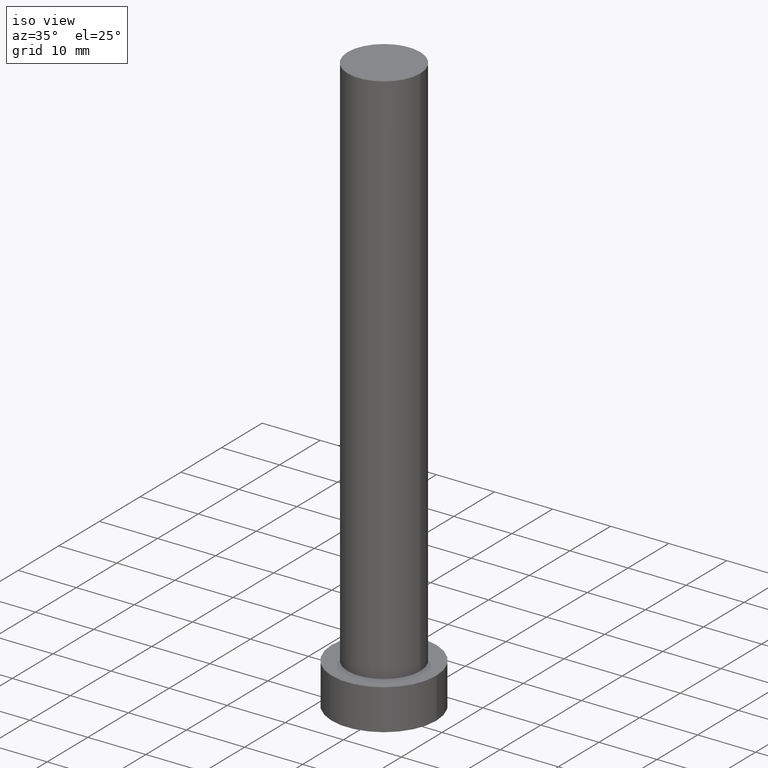
[diagram: clean part render]
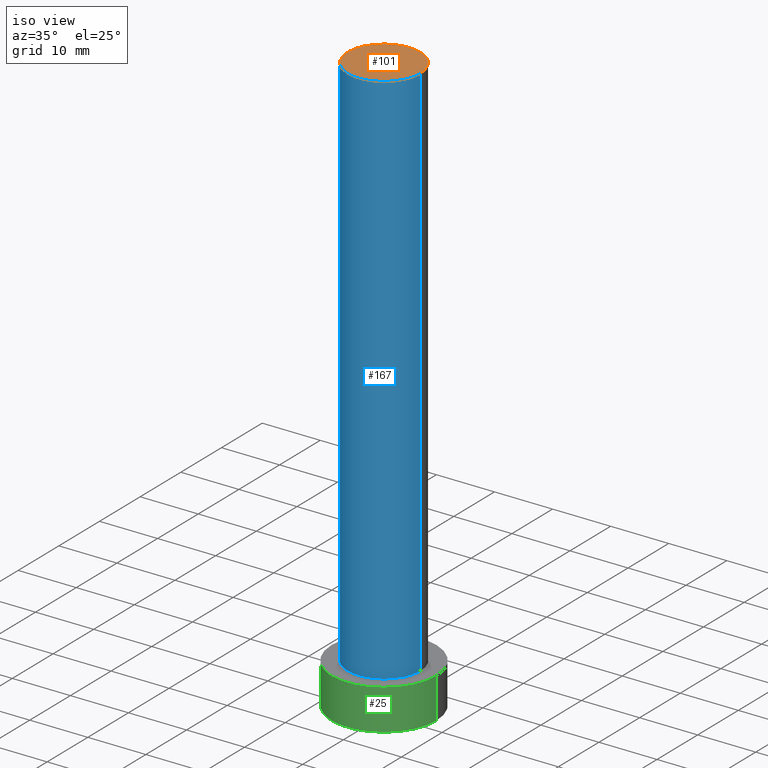
[diagram: same view with three faces highlighted in distinct colors, each labeled with its STEP entity id]
A machine part, iso view with three faces highlighted in distinct colors.
Their STEP definitions:

[orange] entity #101 — the highlighted planar face has unit normal (0, 0, 1).
#26 = AXIS2_PLACEMENT_3D ( 'NONE', #234, #233, #159 ) ;
#27 = CARTESIAN_POINT ( 'NONE',  ( -6.250000000000000000, 0.000000000000000000, 100.0000000000000000 ) ) ;
#36 = EDGE_CURVE ( 'NONE', #190, #245, #103, .T. ) ;
#44 = AXIS2_PLACEMENT_3D ( 'NONE', #88, #47, #121 ) ;
#46 = CARTESIAN_POINT ( 'NONE',  ( 6.250000000000000000, 7.654042494670955634E-16, 100.0000000000000000 ) ) ;
#47 = DIRECTION ( 'NONE',  ( 0.000000000000000000, 0.000000000000000000, 1.000000000000000000 ) ) ;
#85 = CARTESIAN_POINT ( 'NONE',  ( 0.000000000000000000, 0.000000000000000000, 100.0000000000000000 ) ) ;
#88 = CARTESIAN_POINT ( 'NONE',  ( 0.000000000000000000, 0.000000000000000000, 100.0000000000000000 ) ) ;
#97 = EDGE_LOOP ( 'NONE', ( #155, #193 ) ) ;
#101 = ADVANCED_FACE ( 'NONE', ( #108 ), #105, .T. ) ;
#103 = CIRCLE ( 'NONE', #26, 6.250000000000000000 ) ;
#105 = PLANE ( 'NONE',  #197 ) ;
#108 = FACE_OUTER_BOUND ( 'NONE', #97, .T. ) ;
#111 = EDGE_CURVE ( 'NONE', #245, #190, #158, .T. ) ;
#121 = DIRECTION ( 'NONE',  ( 1.000000000000000000, 0.000000000000000000, 0.000000000000000000 ) ) ;
#155 = ORIENTED_EDGE ( 'NONE', *, *, #36, .T. ) ;
#158 = CIRCLE ( 'NONE', #44, 6.250000000000000000 ) ;
#159 = DIRECTION ( 'NONE',  ( 1.000000000000000000, 0.000000000000000000, 0.000000000000000000 ) ) ;
#163 = DIRECTION ( 'NONE',  ( 0.000000000000000000, 0.000000000000000000, 1.000000000000000000 ) ) ;
#190 = VERTEX_POINT ( 'NONE', #27 ) ;
#193 = ORIENTED_EDGE ( 'NONE', *, *, #111, .T. ) ;
#197 = AXIS2_PLACEMENT_3D ( 'NONE', #85, #163, #219 ) ;
#219 = DIRECTION ( 'NONE',  ( 1.000000000000000000, 0.000000000000000000, -0.000000000000000000 ) ) ;
#233 = DIRECTION ( 'NONE',  ( 0.000000000000000000, 0.000000000000000000, 1.000000000000000000 ) ) ;
#234 = CARTESIAN_POINT ( 'NONE',  ( 0.000000000000000000, 0.000000000000000000, 100.0000000000000000 ) ) ;
#245 = VERTEX_POINT ( 'NONE', #46 ) ;

[blue] entity #167 — the highlighted cylindrical surface (partial cylindrical patch) has radius 6.25 mm, axis along (-0, -0, -1).
#2 = LINE ( 'NONE', #50, #232 ) ;
#8 = DIRECTION ( 'NONE',  ( -0.000000000000000000, -0.000000000000000000, -1.000000000000000000 ) ) ;
#15 = EDGE_CURVE ( 'NONE', #245, #35, #69, .T. ) ;
#21 = CARTESIAN_POINT ( 'NONE',  ( 0.000000000000000000, 0.000000000000000000, 7.000000000000000000 ) ) ;
#26 = AXIS2_PLACEMENT_3D ( 'NONE', #234, #233, #159 ) ;
#27 = CARTESIAN_POINT ( 'NONE',  ( -6.250000000000000000, 0.000000000000000000, 100.0000000000000000 ) ) ;
#35 = VERTEX_POINT ( 'NONE', #104 ) ;
#36 = EDGE_CURVE ( 'NONE', #190, #245, #103, .T. ) ;
#40 = AXIS2_PLACEMENT_3D ( 'NONE', #21, #140, #86 ) ;
#42 = EDGE_CURVE ( 'NONE', #251, #35, #99, .T. ) ;
#46 = CARTESIAN_POINT ( 'NONE',  ( 6.250000000000000000, 7.654042494670955634E-16, 100.0000000000000000 ) ) ;
#50 = CARTESIAN_POINT ( 'NONE',  ( -6.250000000000000000, 0.000000000000000000, 100.0000000000000000 ) ) ;
#52 = DIRECTION ( 'NONE',  ( -0.000000000000000000, -0.000000000000000000, -1.000000000000000000 ) ) ;
#54 = CYLINDRICAL_SURFACE ( 'NONE', #196, 6.250000000000000000 ) ;
#64 = ORIENTED_EDGE ( 'NONE', *, *, #42, .T. ) ;
#69 = LINE ( 'NONE', #185, #248 ) ;
#86 = DIRECTION ( 'NONE',  ( 1.000000000000000000, 0.000000000000000000, 0.000000000000000000 ) ) ;
#90 = DIRECTION ( 'NONE',  ( -1.000000000000000000, 0.000000000000000000, 0.000000000000000000 ) ) ;
#92 = CARTESIAN_POINT ( 'NONE',  ( 0.000000000000000000, 0.000000000000000000, 100.0000000000000000 ) ) ;
#99 = CIRCLE ( 'NONE', #40, 6.250000000000000000 ) ;
#103 = CIRCLE ( 'NONE', #26, 6.250000000000000000 ) ;
#104 = CARTESIAN_POINT ( 'NONE',  ( 6.250000000000000000, 7.654042494670955634E-16, 7.000000000000000000 ) ) ;
#114 = ORIENTED_EDGE ( 'NONE', *, *, #15, .F. ) ;
#128 = FACE_OUTER_BOUND ( 'NONE', #210, .T. ) ;
#134 = ORIENTED_EDGE ( 'NONE', *, *, #36, .F. ) ;
#140 = DIRECTION ( 'NONE',  ( 0.000000000000000000, 0.000000000000000000, 1.000000000000000000 ) ) ;
#159 = DIRECTION ( 'NONE',  ( 1.000000000000000000, 0.000000000000000000, 0.000000000000000000 ) ) ;
#161 = EDGE_CURVE ( 'NONE', #190, #251, #2, .T. ) ;
#167 = ADVANCED_FACE ( 'NONE', ( #128 ), #54, .T. ) ;
#185 = CARTESIAN_POINT ( 'NONE',  ( 6.250000000000000000, 7.654042494670955634E-16, 100.0000000000000000 ) ) ;
#190 = VERTEX_POINT ( 'NONE', #27 ) ;
#196 = AXIS2_PLACEMENT_3D ( 'NONE', #92, #241, #90 ) ;
#204 = CARTESIAN_POINT ( 'NONE',  ( -6.250000000000000000, 0.000000000000000000, 7.000000000000000000 ) ) ;
#208 = ORIENTED_EDGE ( 'NONE', *, *, #161, .T. ) ;
#210 = EDGE_LOOP ( 'NONE', ( #114, #134, #208, #64 ) ) ;
#232 = VECTOR ( 'NONE', #8, 1000.000000000000000 ) ;
#233 = DIRECTION ( 'NONE',  ( 0.000000000000000000, 0.000000000000000000, 1.000000000000000000 ) ) ;
#234 = CARTESIAN_POINT ( 'NONE',  ( 0.000000000000000000, 0.000000000000000000, 100.0000000000000000 ) ) ;
#241 = DIRECTION ( 'NONE',  ( -0.000000000000000000, -0.000000000000000000, -1.000000000000000000 ) ) ;
#245 = VERTEX_POINT ( 'NONE', #46 ) ;
#248 = VECTOR ( 'NONE', #52, 1000.000000000000000 ) ;
#251 = VERTEX_POINT ( 'NONE', #204 ) ;

[green] entity #25 — the highlighted cylindrical surface (partial cylindrical patch) has radius 9 mm, axis along (-0, -0, -1).
#9 = CYLINDRICAL_SURFACE ( 'NONE', #138, 9.000000000000000000 ) ;
#16 = CARTESIAN_POINT ( 'NONE',  ( -9.000000000000000000, 0.000000000000000000, 0.000000000000000000 ) ) ;
#20 = DIRECTION ( 'NONE',  ( 0.000000000000000000, 0.000000000000000000, 1.000000000000000000 ) ) ;
#25 = ADVANCED_FACE ( 'NONE', ( #110 ), #9, .T. ) ;
#31 = VECTOR ( 'NONE', #49, 1000.000000000000000 ) ;
#41 = DIRECTION ( 'NONE',  ( -1.000000000000000000, 0.000000000000000000, 0.000000000000000000 ) ) ;
#49 = DIRECTION ( 'NONE',  ( -0.000000000000000000, -0.000000000000000000, -1.000000000000000000 ) ) ;
#55 = EDGE_CURVE ( 'NONE', #125, #178, #65, .T. ) ;
#60 = EDGE_LOOP ( 'NONE', ( #194, #173, #129, #63 ) ) ;
#63 = ORIENTED_EDGE ( 'NONE', *, *, #82, .T. ) ;
#65 = CIRCLE ( 'NONE', #78, 9.000000000000000000 ) ;
#71 = CARTESIAN_POINT ( 'NONE',  ( 0.000000000000000000, 0.000000000000000000, 7.000000000000000000 ) ) ;
#76 = VERTEX_POINT ( 'NONE', #139 ) ;
#78 = AXIS2_PLACEMENT_3D ( 'NONE', #144, #160, #201 ) ;
#82 = EDGE_CURVE ( 'NONE', #212, #76, #165, .T. ) ;
#83 = VECTOR ( 'NONE', #145, 1000.000000000000000 ) ;
#107 = DIRECTION ( 'NONE',  ( 1.000000000000000000, 0.000000000000000000, 0.000000000000000000 ) ) ;
#110 = FACE_OUTER_BOUND ( 'NONE', #60, .T. ) ;
#125 = VERTEX_POINT ( 'NONE', #164 ) ;
#129 = ORIENTED_EDGE ( 'NONE', *, *, #230, .T. ) ;
#131 = CARTESIAN_POINT ( 'NONE',  ( -9.000000000000000000, 0.000000000000000000, 7.000000000000000000 ) ) ;
#138 = AXIS2_PLACEMENT_3D ( 'NONE', #71, #221, #41 ) ;
#139 = CARTESIAN_POINT ( 'NONE',  ( 9.000000000000000000, 1.102182119232617714E-15, 0.000000000000000000 ) ) ;
#144 = CARTESIAN_POINT ( 'NONE',  ( 0.000000000000000000, 0.000000000000000000, 7.000000000000000000 ) ) ;
#145 = DIRECTION ( 'NONE',  ( -0.000000000000000000, -0.000000000000000000, -1.000000000000000000 ) ) ;
#148 = CARTESIAN_POINT ( 'NONE',  ( 9.000000000000000000, 1.102182119232617714E-15, 7.000000000000000000 ) ) ;
#153 = LINE ( 'NONE', #131, #31 ) ;
#160 = DIRECTION ( 'NONE',  ( 0.000000000000000000, 0.000000000000000000, 1.000000000000000000 ) ) ;
#164 = CARTESIAN_POINT ( 'NONE',  ( -9.000000000000000000, 0.000000000000000000, 7.000000000000000000 ) ) ;
#165 = CIRCLE ( 'NONE', #236, 9.000000000000000000 ) ;
#169 = CARTESIAN_POINT ( 'NONE',  ( 9.000000000000000000, 1.102182119232617714E-15, 7.000000000000000000 ) ) ;
#173 = ORIENTED_EDGE ( 'NONE', *, *, #55, .F. ) ;
#178 = VERTEX_POINT ( 'NONE', #148 ) ;
#194 = ORIENTED_EDGE ( 'NONE', *, *, #243, .F. ) ;
#200 = CARTESIAN_POINT ( 'NONE',  ( 0.000000000000000000, 0.000000000000000000, 0.000000000000000000 ) ) ;
#201 = DIRECTION ( 'NONE',  ( 1.000000000000000000, 0.000000000000000000, 0.000000000000000000 ) ) ;
#202 = LINE ( 'NONE', #169, #83 ) ;
#212 = VERTEX_POINT ( 'NONE', #16 ) ;
#221 = DIRECTION ( 'NONE',  ( -0.000000000000000000, -0.000000000000000000, -1.000000000000000000 ) ) ;
#230 = EDGE_CURVE ( 'NONE', #125, #212, #153, .T. ) ;
#236 = AXIS2_PLACEMENT_3D ( 'NONE', #200, #20, #107 ) ;
#243 = EDGE_CURVE ( 'NONE', #178, #76, #202, .T. ) ;